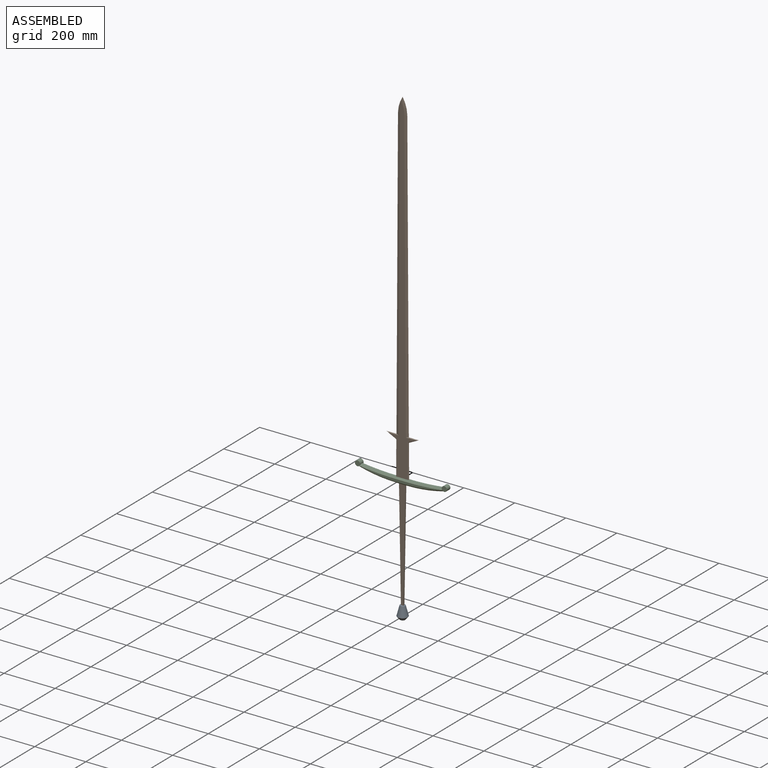
[diagram: assembled view]
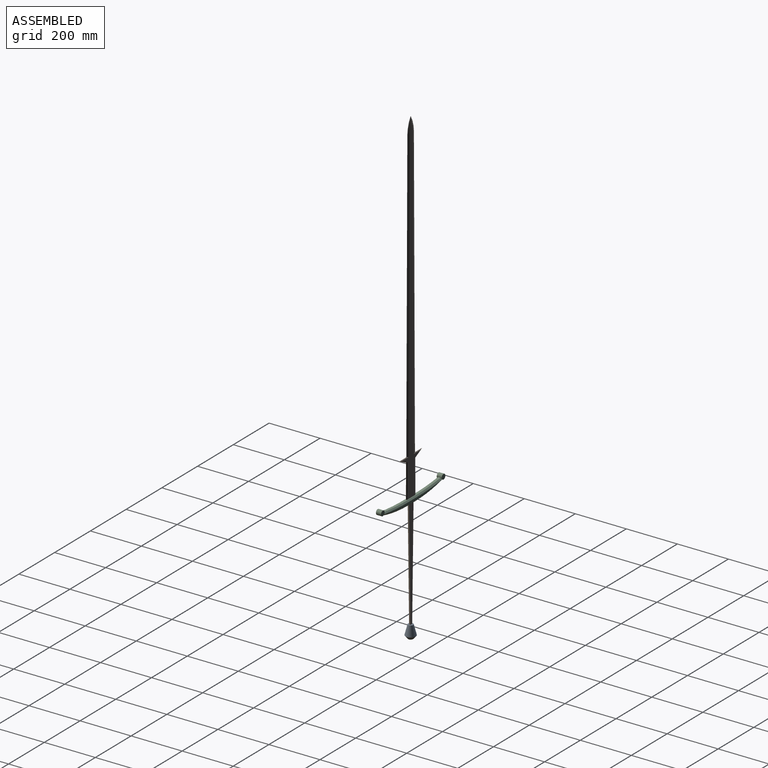
[diagram: assembled view, second angle]
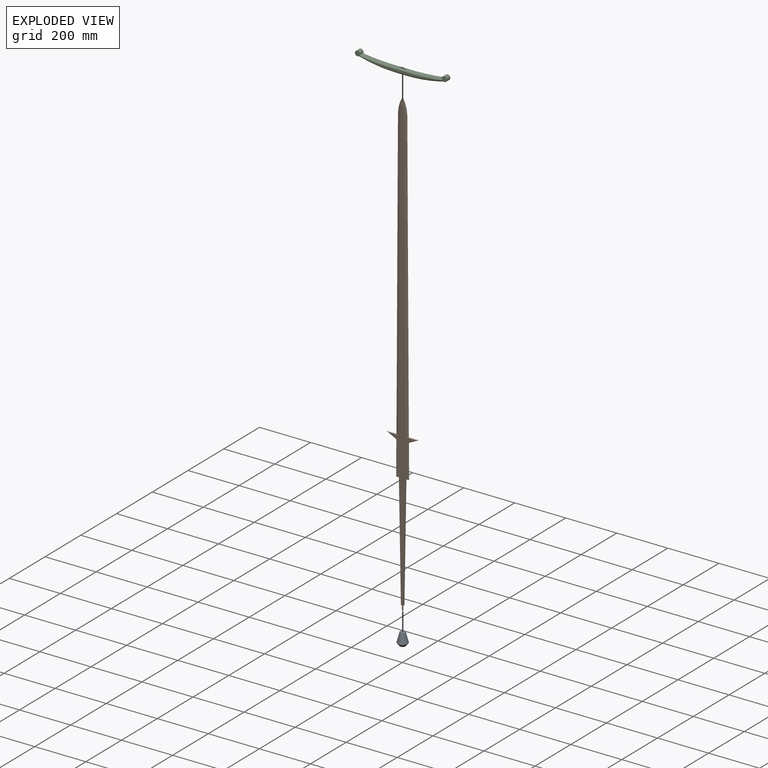
[diagram: exploded view]
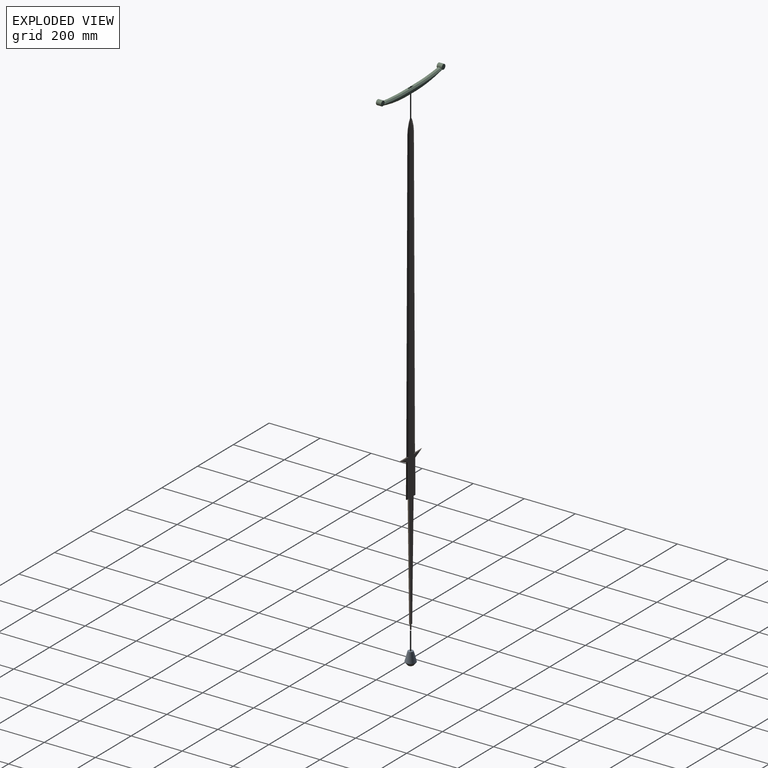
[diagram: exploded view, second angle]
ASSEMBLY  parts=3 mates=2
PART A: 6 faces, bbox 40x40x50 mm
  f0: plane 20x20mm, normal (0,0,1), area 294.5mm2, adj f1,f4
  f1: cone r=20mm half-angle=14.7deg, axis (0,0,-1), area 3703.4mm2, adj f0,f2
  f2: cone r=20mm half-angle=39.8deg, axis (0,0,1), area 1472.2mm2, adj f1,f3
  f3: plane 20x20mm, normal (0,0,-1), area 314.2mm2, adj f2
  f4: cylinder r=2.5mm len=20mm, axis (0,0,1), area 314.2mm2, adj f0,f5
  f5: plane 5x5mm, normal (0,0,1), area 19.6mm2, adj f4
PART B: 37 faces, bbox 124.8x5x1820 mm
  f0: plane 5.15x5mm, normal (0,0,-1), area 15.9mm2, adj f1,f5,f7,f14
  f1: plane 1778.22x107.86mm, normal (0,1,0), area 41426.7mm2, adj f0,f4,f6,f7,f8,f9,f17,f18
  f2: plane 130.97x1mm, normal (-1,0,0.01), area 131mm2, adj f9,f13,f25,f28
  f3: plane 130.98x1mm, normal (1,0,0.01), area 131mm2, adj f6,f11,f32,f35
  f4: plane 5.15x5mm, normal (0,0,-1), area 15.9mm2, adj f1,f5,f8,f14
  f5: plane 1778.22x107.86mm, normal (0,-1,0), area 41426.7mm2, adj f0,f4,f6,f7,f8,f9,f19,f22
  f6: plane 12x5mm, normal (0,0,-1), area 56mm2, adj f1,f3,f5,f7,f32,f35
  f7: plane 450x7.85mm, normal (1,0,-0.02), area 2250.3mm2, adj f0,f1,f5,f6
  f8: plane 450x7.85mm, normal (-1,0,-0.02), area 2250.3mm2, adj f1,f4,f5,f9
  f9: plane 12x5mm, normal (0,0,-1), area 56mm2, adj f1,f2,f5,f8,f25,f28
  f10: plane 40.13x1mm, normal (0,0,1), area 39.1mm2, adj f11,f17,f19,f31,f34
  f11: plane 38.03x19.02mm, normal (0.45,0,-0.89), area 42.5mm2, adj f3,f10,f33,f36
  f12: plane 40.26x1mm, normal (0,0,1), area 39.3mm2, adj f13,f20,f23,f27,f30
  f13: plane 38.16x19.03mm, normal (-0.45,0,-0.89), area 42.6mm2, adj f2,f12,f26,f29
  f14: cylinder r=2.5mm len=19mm, axis (0,0,1), area 298.5mm2, adj f0,f4,f16
  f15: plane 3x3mm, normal (0,0,-1), area 7.1mm2, adj f16
  f16: cone r=1.5mm half-angle=45deg, axis (0,0,1), area 17.8mm2, adj f14,f15
  f17: plane 1142.01x15.97mm, normal (0.24,0.97,0), area 11758.3mm2, adj f1,f10,f18,f19,f34
  f18: cone r=110mm half-angle=76deg, axis (0,-1,0), area 536mm2, adj f1,f17,f21,f22
  f19: plane 1142.01x15.97mm, normal (0.24,-0.97,0), area 11758.3mm2, adj f5,f10,f17,f22,f31
  f20: plane 1142.01x15.97mm, normal (-0.24,0.97,0), area 11758.4mm2, adj f1,f12,f21,f23,f30
  f21: cone r=110mm half-angle=76deg, axis (0,-1,0), area 536mm2, adj f1,f18,f20,f24
  f22: cone r=110mm half-angle=76deg, axis (0,1,0), area 536mm2, adj f5,f18,f19,f24
  f23: plane 1142.01x15.97mm, normal (-0.24,-0.97,0), area 11758.3mm2, adj f5,f12,f20,f24,f27
  f24: cone r=110mm half-angle=76deg, axis (0,1,0), area 536mm2, adj f5,f21,f22,f23
  f25: plane 132.2x2.69mm, normal (-0.71,-0.71,0), area 372.2mm2, adj f2,f5,f9,f26
  f26: plane 40.17x19.03mm, normal (-0.32,-0.71,-0.63), area 110.4mm2, adj f5,f13,f25,f27
  f27: plane 48.25x2mm, normal (0,-0.71,0.71), area 113.2mm2, adj f5,f12,f23,f26
  f28: plane 132.2x2.69mm, normal (-0.71,0.71,0), area 372.2mm2, adj f1,f2,f9,f29
  f29: plane 40.17x19.03mm, normal (-0.32,0.71,-0.63), area 110.4mm2, adj f1,f13,f28,f30
  f30: plane 48.25x2mm, normal (0,0.71,0.71), area 113.2mm2, adj f1,f12,f20,f29
  f31: plane 48.12x2mm, normal (0,-0.71,0.71), area 112.8mm2, adj f5,f10,f19,f33
  f32: plane 132.22x2.69mm, normal (0.71,-0.71,0), area 372.2mm2, adj f3,f5,f6,f33
  f33: plane 40.04x19.02mm, normal (0.32,-0.71,-0.63), area 110mm2, adj f5,f11,f31,f32
  f34: plane 48.12x2mm, normal (0,0.71,0.71), area 112.8mm2, adj f1,f10,f17,f36
  f35: plane 132.22x2.69mm, normal (0.71,0.71,0), area 372.2mm2, adj f1,f3,f6,f36
  f36: plane 40.04x19.02mm, normal (0.32,0.71,-0.63), area 110mm2, adj f1,f11,f34,f35
PART C: 26 faces, bbox 360x20x40 mm
  f0: plane 40x10mm, normal (0,0,-1), area 273.5mm2, adj f4,f5,f10,f11,f12,f13,f15,f18
  f1: plane 40x10mm, normal (0,0,1), area 270mm2, adj f2,f7,f10,f11,f12,f13,f22,f24
  f2: cylinder r=1000mm len=140.09mm, axis (0,1,0), area 1404.7mm2, adj f1,f3,f20,f25
  f3: cylinder r=10mm len=20mm, axis (0,1,0), area 1043.8mm2, adj f2,f4,f8,f9,f14,f17,f20,f25
  f4: cylinder r=572.5mm len=150mm, axis (0,1,0), area 1517.7mm2, adj f0,f3,f14,f17
  f5: cylinder r=572.5mm len=150mm, axis (0,1,0), area 1517.7mm2, adj f0,f6,f16,f19
  f6: cylinder r=10mm len=20mm, axis (0,1,0), area 1043.8mm2, adj f5,f7,f8,f9,f16,f19,f21,f23
  f7: cylinder r=1000mm len=140.09mm, axis (0,1,0), area 1404.7mm2, adj f1,f6,f21,f23
  f8: plane 360x35mm, normal (0,-1,0), area 2948.7mm2, adj f3,f6,f17,f18,f19,f20,f21,f22
  f9: plane 360x35mm, normal (0,1,0), area 2948.7mm2, adj f3,f6,f14,f15,f16,f23,f24,f25
  f10: plane 26x20mm, normal (0,-1,0), area 513mm2, adj f0,f1,f11,f13
  f11: plane 20x5mm, normal (1,0,0.02), area 100mm2, adj f0,f1,f10,f12
  f12: plane 26x20mm, normal (0,1,0), area 513mm2, adj f0,f1,f11,f13
  f13: plane 20x5mm, normal (-1,0,0.02), area 100mm2, adj f0,f1,f10,f12
  f14: cone r=572.5mm half-angle=45deg, axis (0,-1,0), area 1040mm2, adj f3,f4,f9,f15
  f15: plane 40x5mm, normal (0,0.71,-0.71), area 282.8mm2, adj f0,f9,f14,f16
  f16: cone r=572.5mm half-angle=45deg, axis (0,-1,0), area 1040mm2, adj f5,f6,f9,f15
  f17: cone r=567.5mm half-angle=45deg, axis (0,1,0), area 1040mm2, adj f3,f4,f8,f18
  f18: plane 40x5mm, normal (0,-0.71,-0.71), area 282.8mm2, adj f0,f8,f17,f19
  f19: cone r=567.5mm half-angle=45deg, axis (0,1,0), area 1040mm2, adj f5,f6,f8,f18
  f20: cone r=1000mm half-angle=45deg, axis (0,-1,0), area 998.9mm2, adj f2,f3,f8,f22
  f21: cone r=1000mm half-angle=45deg, axis (0,-1,0), area 998.9mm2, adj f6,f7,f8,f22
  f22: plane 40x5mm, normal (0,-0.71,0.71), area 282.7mm2, adj f1,f8,f20,f21
  f23: cone r=1005mm half-angle=45deg, axis (0,1,0), area 998.9mm2, adj f6,f7,f9,f24
  f24: plane 40x5mm, normal (0,0.71,0.71), area 282.7mm2, adj f1,f9,f23,f25
  f25: cone r=1005mm half-angle=45deg, axis (0,1,0), area 998.9mm2, adj f2,f3,f9,f24
PLACE A t=(-874.76,223.05,27.18)mm
PLACE B t=(-899.76,220.55,27.18)mm
PLACE C t=(-854.76,233.05,457.18)mm
MATE fastened A.f4 <-> B.f14  axis (0,0,1) through (-874.76,223.05,7.18)mm
MATE fastened C.f1 <-> B.f6  axis (0,0,1) through (-861.76,225.55,477.18)mm
